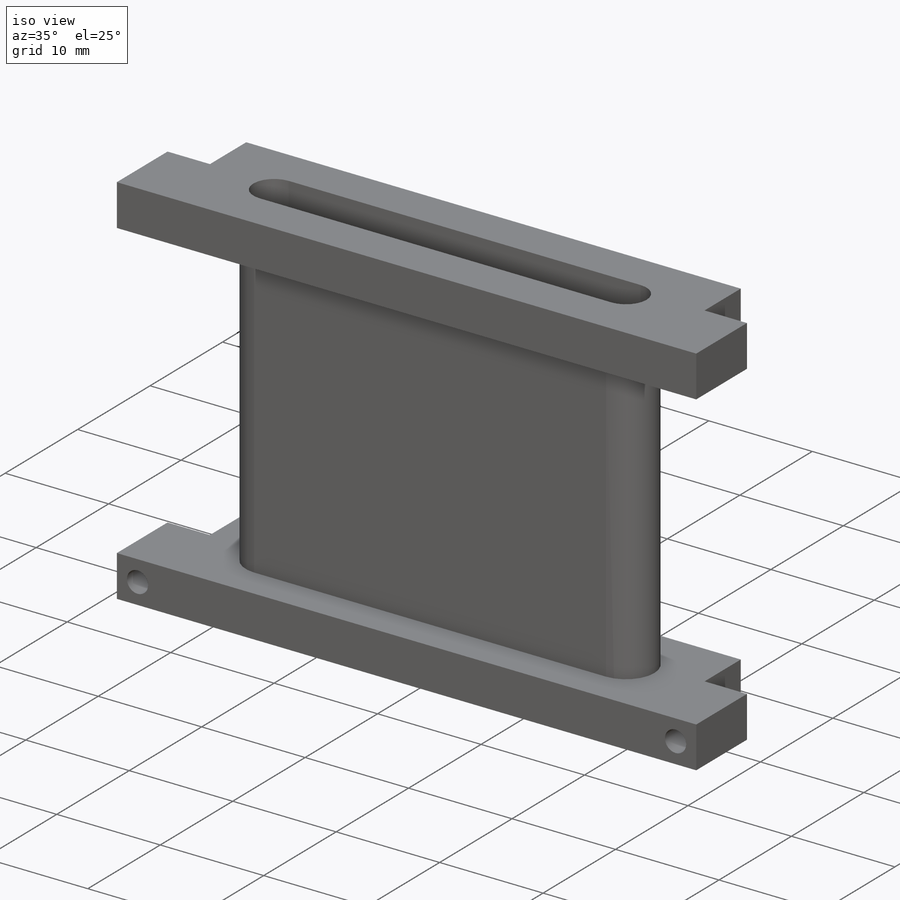
[diagram: iso view]
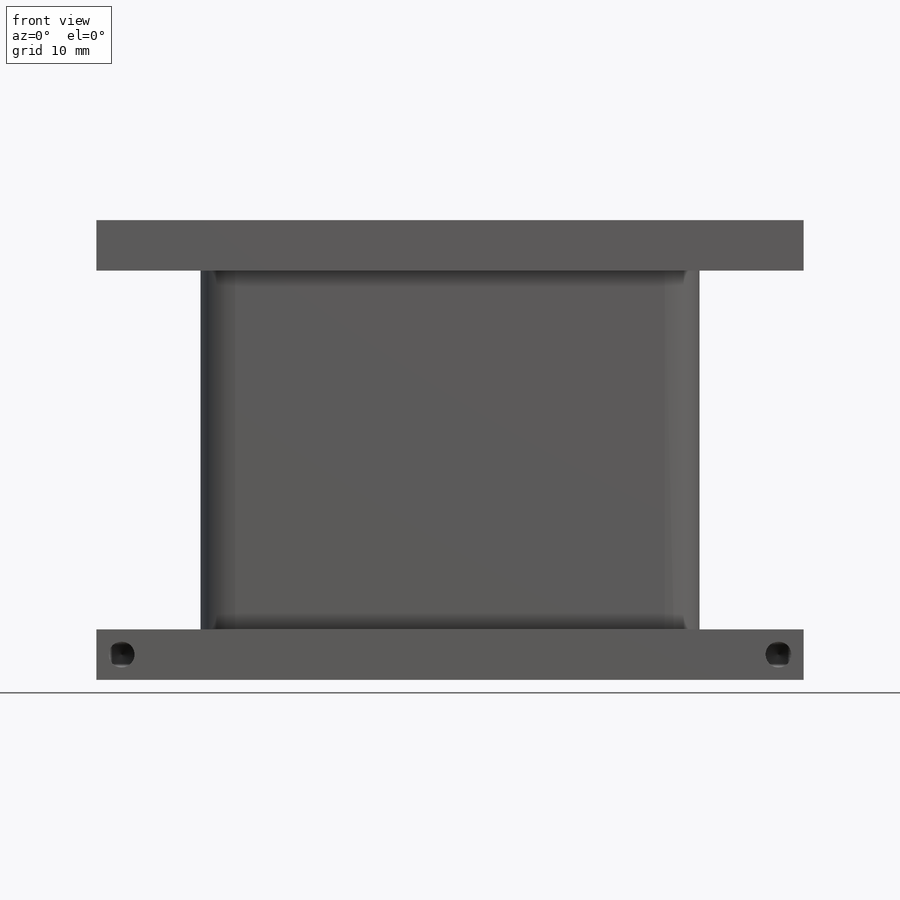
[diagram: front view]
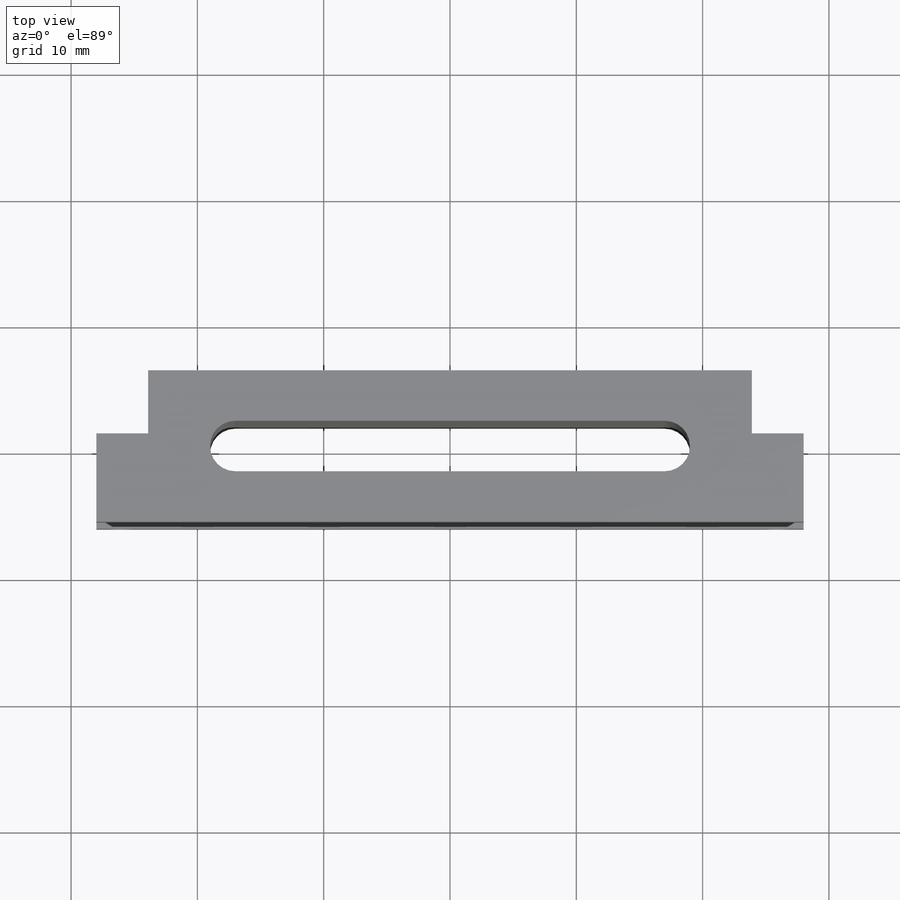
[diagram: top view]
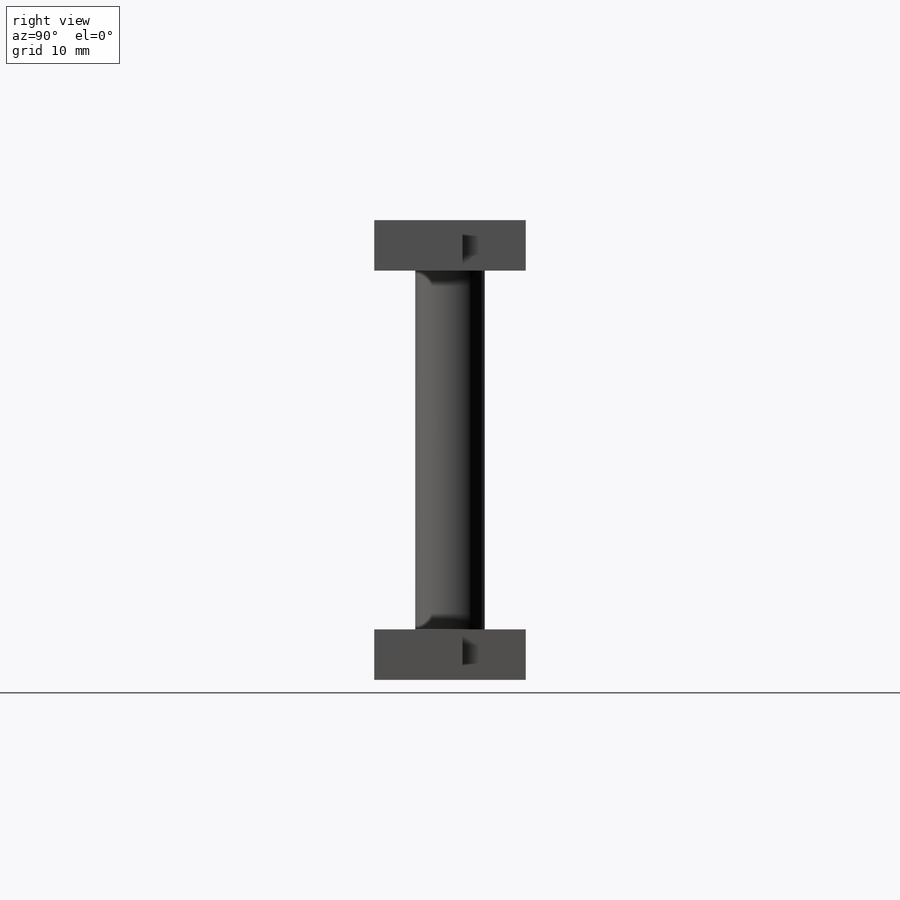
[diagram: right view]
SOLIDWORKS PART (.sldprt)
format: sldprt  version: not decoded by parser v0  size: 286,208 bytes
history: native  units: mm
features: sketch x11, cut_extrude x5, extrude x4, material x1, plane x1, hole x1 (+13 scaffold rows collapsed)
feature tree (36):
  scaffold x13  (default folders/planes/origin — collapsed)
  material  "Material <not specified>"
  sketch  "Sketch1"
  extrude  "Boss-Extrude1"  Depth=4mm
  sketch  "Sketch2"
  extrude  "Boss-Extrude2"  Depth=28.4mm
  plane  "Plane1"
  sketch  "Sketch3"
  extrude  "Boss-Extrude3"  Depth=4mm
  sketch  "Sketch4"
  extrude  "Boss-Extrude4"  Depth=3.25mm
  sketch  "Sketch5"
  cut_extrude  "Cut-Extrude1"  Depth=4mm
  sketch  "Sketch6"
  cut_extrude  "Cut-Extrude2"  Depth=4mm
  sketch  "Sketch7"
  cut_extrude  "Cut-Extrude3"  Depth=4mm
  sketch  "Sketch8"
  cut_extrude  "Cut-Extrude4"  Depth=4mm
  sketch  "Sketch9"
  cut_extrude  "Cut-Extrude5"  Depth=36.4mm
  hole  "Ø2.05 (2.05) Diameter Hole1"  Diameter=2.05mm Depth=4mm
  sketch  "Sketch11"
  sketch  "Sketch10"  dims[hole-wizard template sketch: 47 standard entries collapsed; hole parameters kept: c15.Hole Depth=4.0mm c15.D3=~14.816244mm c15.Drill Angle=118.0deg]
decode coverage: 11 of 21 modeling features carry decoded parameters
note: ~ marks probable driven/reference dimensions
note: suppression state not decoded; provenance and decode notes live in map.json
